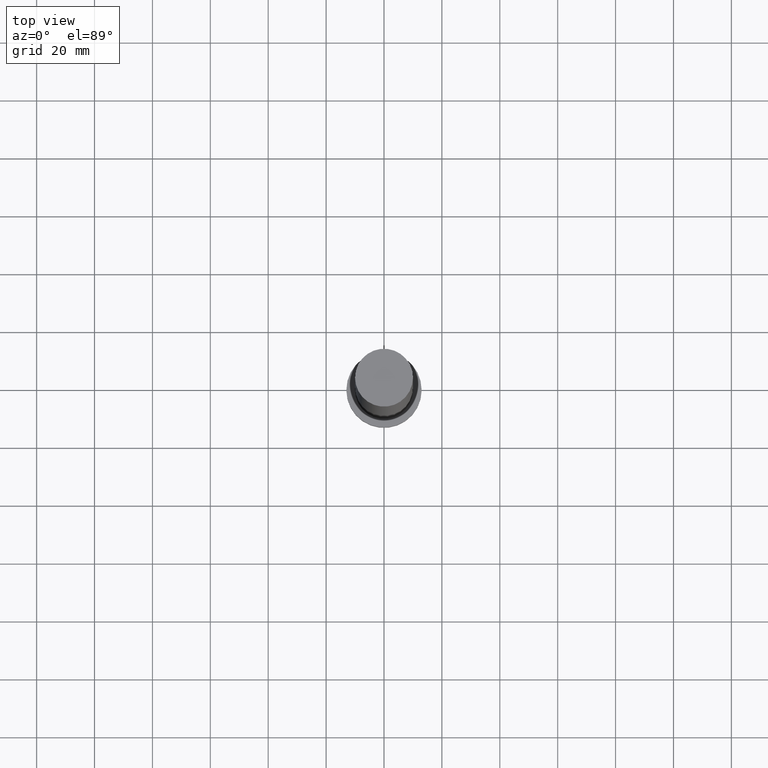
[diagram: clean part render]
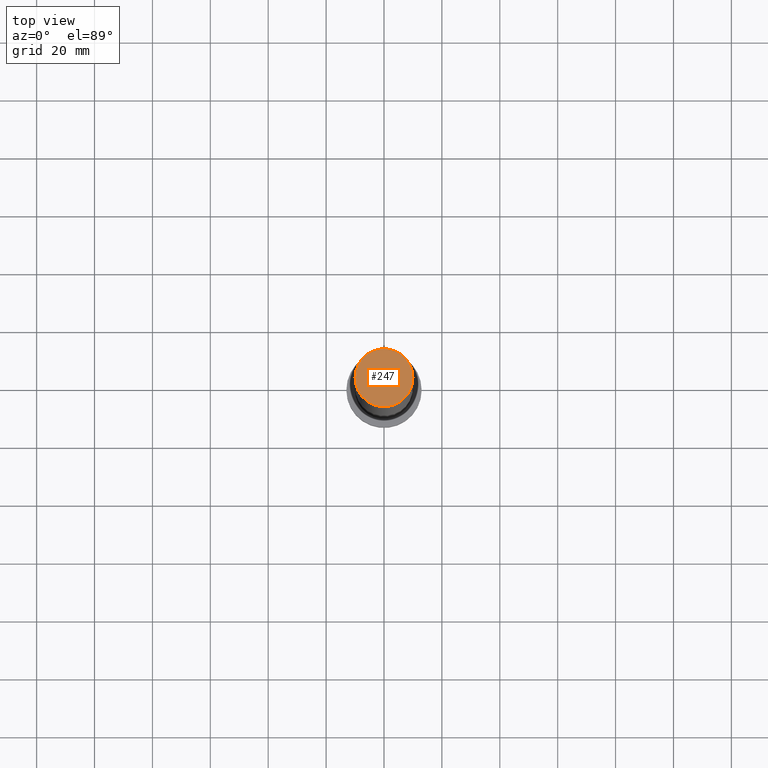
[diagram: same view with one face highlighted and labeled with its STEP entity id]
A machine part, top view. The second image highlights one B-rep face of the part: STEP entity #247.
In plain terms, the highlighted planar face has unit normal (0, 0, 1).
Its self-contained STEP definition (entity closure, byte-faithful):
#6 = DIRECTION ( 'NONE',  ( 1.000000000000000000, 0.000000000000000000, 0.000000000000000000 ) ) ;
#10 = EDGE_CURVE ( 'NONE', #142, #102, #42, .T. ) ;
#15 = PLANE ( 'NONE',  #114 ) ;
#22 = CARTESIAN_POINT ( 'NONE',  ( 10.00000000000000178, 1.224646799147353454E-15, 250.0000000000000000 ) ) ;
#36 = AXIS2_PLACEMENT_3D ( 'NONE', #223, #84, #110 ) ;
#41 = EDGE_CURVE ( 'NONE', #102, #142, #209, .T. ) ;
#42 = CIRCLE ( 'NONE', #190, 10.00000000000000178 ) ;
#47 = DIRECTION ( 'NONE',  ( 0.000000000000000000, 0.000000000000000000, 1.000000000000000000 ) ) ;
#59 = ORIENTED_EDGE ( 'NONE', *, *, #10, .T. ) ;
#73 = DIRECTION ( 'NONE',  ( 0.000000000000000000, 0.000000000000000000, 1.000000000000000000 ) ) ;
#84 = DIRECTION ( 'NONE',  ( 0.000000000000000000, 0.000000000000000000, 1.000000000000000000 ) ) ;
#90 = CARTESIAN_POINT ( 'NONE',  ( 0.000000000000000000, 0.000000000000000000, 250.0000000000000000 ) ) ;
#97 = EDGE_LOOP ( 'NONE', ( #122, #59 ) ) ;
#102 = VERTEX_POINT ( 'NONE', #187 ) ;
#110 = DIRECTION ( 'NONE',  ( 1.000000000000000000, 0.000000000000000000, 0.000000000000000000 ) ) ;
#114 = AXIS2_PLACEMENT_3D ( 'NONE', #90, #73, #159 ) ;
#115 = FACE_OUTER_BOUND ( 'NONE', #97, .T. ) ;
#122 = ORIENTED_EDGE ( 'NONE', *, *, #41, .T. ) ;
#142 = VERTEX_POINT ( 'NONE', #22 ) ;
#159 = DIRECTION ( 'NONE',  ( 1.000000000000000000, 0.000000000000000000, -0.000000000000000000 ) ) ;
#187 = CARTESIAN_POINT ( 'NONE',  ( -10.00000000000000178, 0.000000000000000000, 250.0000000000000000 ) ) ;
#190 = AXIS2_PLACEMENT_3D ( 'NONE', #204, #47, #6 ) ;
#204 = CARTESIAN_POINT ( 'NONE',  ( 0.000000000000000000, 0.000000000000000000, 250.0000000000000000 ) ) ;
#209 = CIRCLE ( 'NONE', #36, 10.00000000000000178 ) ;
#223 = CARTESIAN_POINT ( 'NONE',  ( 0.000000000000000000, 0.000000000000000000, 250.0000000000000000 ) ) ;
#247 = ADVANCED_FACE ( 'NONE', ( #115 ), #15, .T. ) ;